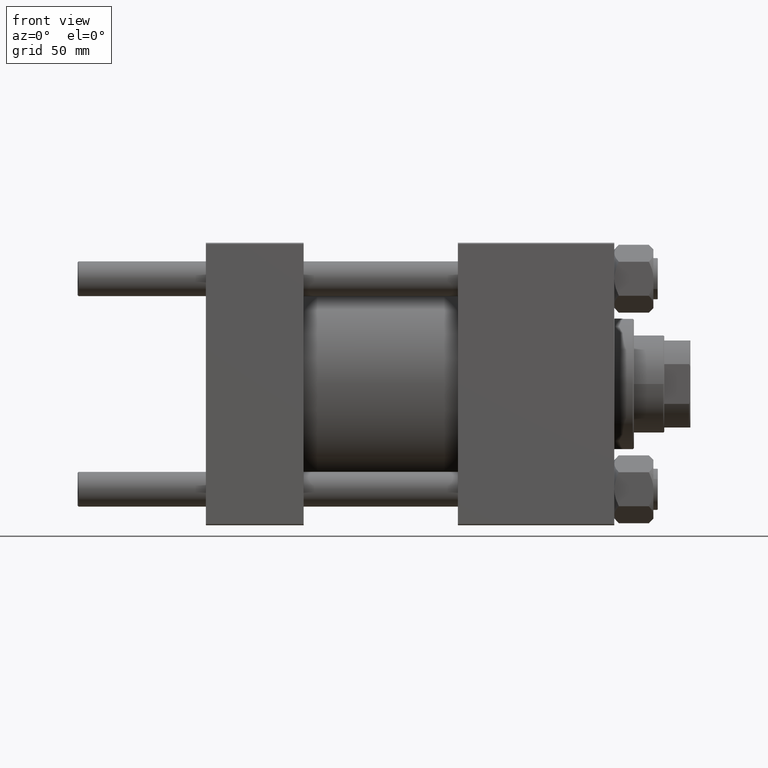
[diagram: clean part render]
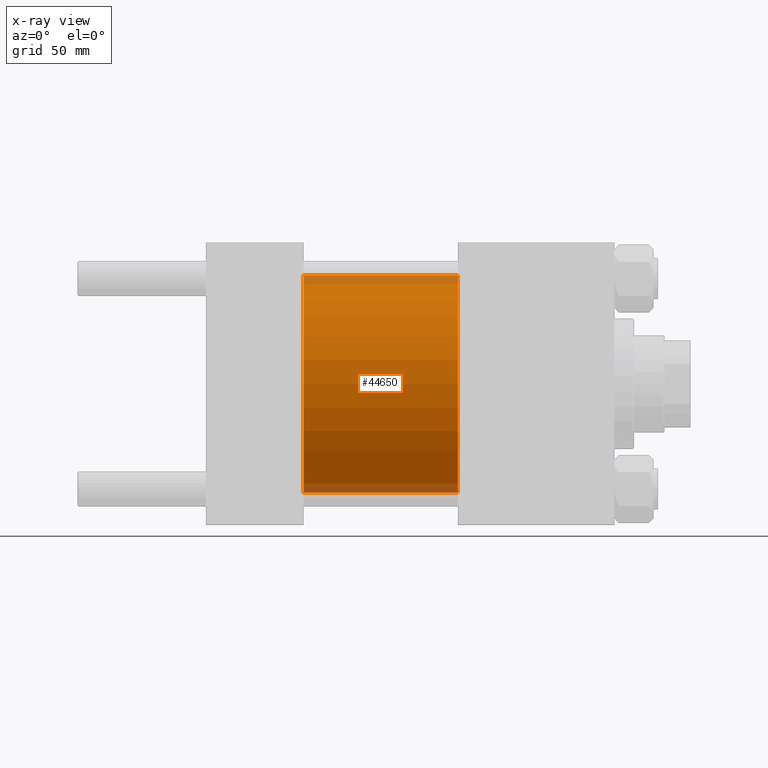
[diagram: x-ray — body ghosted, one internal face saturated and labeled with its STEP entity id]
A machine part, front view, then the same camera in x-ray: the body is ghosted and one INTERNAL B-rep face — a face not visible from any outside direction — is saturated and labeled: STEP entity #44650.
In plain terms, the highlighted cylindrical surface (partial cylindrical patch) has radius 50 mm, axis along (-1, -0, -0).
Its self-contained STEP definition (entity closure, byte-faithful):
#1322 = EDGE_CURVE ( 'NONE', #30994, #9251, #28840, .T. ) ;
#6601 = CARTESIAN_POINT ( 'NONE',  ( 115.9999999999999858, 0.000000000000000000, 0.000000000000000000 ) ) ;
#7140 = FACE_OUTER_BOUND ( 'NONE', #48420, .T. ) ;
#7515 = ORIENTED_EDGE ( 'NONE', *, *, #8312, .F. ) ;
#8312 = EDGE_CURVE ( 'NONE', #8497, #29591, #33511, .T. ) ;
#8497 = VERTEX_POINT ( 'NONE', #48945 ) ;
#8752 = VECTOR ( 'NONE', #21970, 1000.000000000000000 ) ;
#9251 = VERTEX_POINT ( 'NONE', #40642 ) ;
#9905 = DIRECTION ( 'NONE',  ( 0.000000000000000000, 0.000000000000000000, -1.000000000000000000 ) ) ;
#10314 = CARTESIAN_POINT ( 'NONE',  ( 115.9999999999999858, 6.123233995736766085E-15, -50.00000000000000000 ) ) ;
#10789 = ORIENTED_EDGE ( 'NONE', *, *, #24534, .F. ) ;
#11438 = DIRECTION ( 'NONE',  ( 0.000000000000000000, 0.000000000000000000, 1.000000000000000000 ) ) ;
#14054 = DIRECTION ( 'NONE',  ( 1.000000000000000000, 0.000000000000000000, 0.000000000000000000 ) ) ;
#18795 = CYLINDRICAL_SURFACE ( 'NONE', #30521, 50.00000000000000000 ) ;
#21403 = CIRCLE ( 'NONE', #36800, 50.00000000000000000 ) ;
#21843 = CARTESIAN_POINT ( 'NONE',  ( 115.9999999999999858, 0.000000000000000000, 50.00000000000000000 ) ) ;
#21970 = DIRECTION ( 'NONE',  ( -1.000000000000000000, -0.000000000000000000, -0.000000000000000000 ) ) ;
#23103 = DIRECTION ( 'NONE',  ( -1.000000000000000000, -0.000000000000000000, -0.000000000000000000 ) ) ;
#23416 = EDGE_CURVE ( 'NONE', #8497, #30994, #49899, .T. ) ;
#24534 = EDGE_CURVE ( 'NONE', #29591, #9251, #21403, .T. ) ;
#27157 = AXIS2_PLACEMENT_3D ( 'NONE', #6601, #49237, #9905 ) ;
#27315 = ORIENTED_EDGE ( 'NONE', *, *, #23416, .T. ) ;
#28840 = LINE ( 'NONE', #10314, #8752 ) ;
#29535 = DIRECTION ( 'NONE',  ( 0.000000000000000000, 0.000000000000000000, -1.000000000000000000 ) ) ;
#29591 = VERTEX_POINT ( 'NONE', #30405 ) ;
#29950 = DIRECTION ( 'NONE',  ( -1.000000000000000000, -0.000000000000000000, -0.000000000000000000 ) ) ;
#30225 = CARTESIAN_POINT ( 'NONE',  ( 115.9999999999999858, 0.000000000000000000, 0.000000000000000000 ) ) ;
#30405 = CARTESIAN_POINT ( 'NONE',  ( 45.00000000000000000, 0.000000000000000000, 50.00000000000000000 ) ) ;
#30521 = AXIS2_PLACEMENT_3D ( 'NONE', #30225, #23103, #11438 ) ;
#30994 = VERTEX_POINT ( 'NONE', #36518 ) ;
#31841 = ORIENTED_EDGE ( 'NONE', *, *, #1322, .T. ) ;
#33511 = LINE ( 'NONE', #21843, #38106 ) ;
#36518 = CARTESIAN_POINT ( 'NONE',  ( 115.9999999999999858, 6.123233995736766085E-15, -50.00000000000000000 ) ) ;
#36800 = AXIS2_PLACEMENT_3D ( 'NONE', #48837, #14054, #29535 ) ;
#38106 = VECTOR ( 'NONE', #29950, 1000.000000000000000 ) ;
#40642 = CARTESIAN_POINT ( 'NONE',  ( 45.00000000000000000, 6.123233995736766085E-15, -50.00000000000000000 ) ) ;
#44650 = ADVANCED_FACE ( 'NONE', ( #7140 ), #18795, .F. ) ;
#48420 = EDGE_LOOP ( 'NONE', ( #27315, #31841, #10789, #7515 ) ) ;
#48837 = CARTESIAN_POINT ( 'NONE',  ( 45.00000000000000000, 0.000000000000000000, 0.000000000000000000 ) ) ;
#48945 = CARTESIAN_POINT ( 'NONE',  ( 115.9999999999999858, 0.000000000000000000, 50.00000000000000000 ) ) ;
#49237 = DIRECTION ( 'NONE',  ( 1.000000000000000000, 0.000000000000000000, 0.000000000000000000 ) ) ;
#49899 = CIRCLE ( 'NONE', #27157, 50.00000000000000000 ) ;